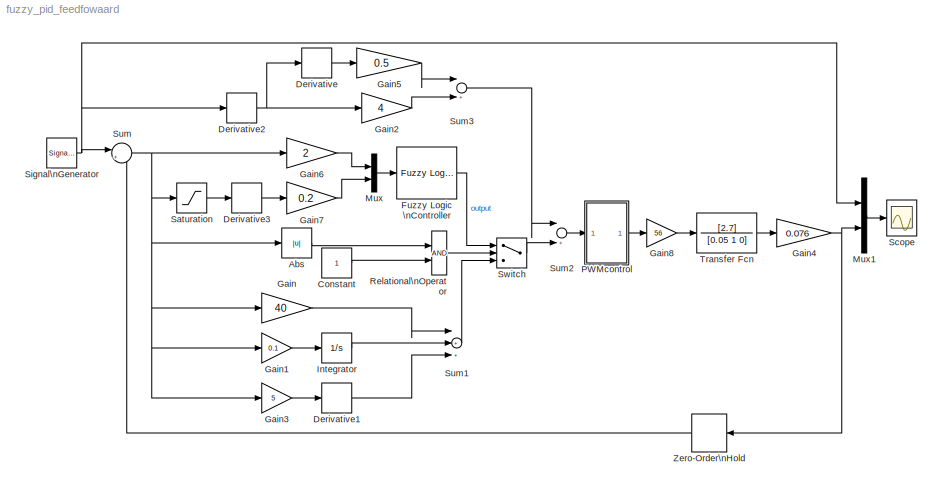
MODEL fuzzy_pid_feedfowaard
KIND model
BLOCK [Abs] Abs
  SampleTime = -1
  SaturateOnIntegerOverflow = on
  ZeroCross = on
BLOCK [Constant] Constant
  ConRadixGroup = Use specified scaling
  FramePeriod = inf
  OutDataType = sfix(16)
  OutDataTypeMode = Inherit from 'Constant value'
  OutScaling = 2^0
  SampleTime = inf
  SamplingMode = Sample based
  Value = 1
  VectorParams1D = on
BLOCK [Derivative] Derivative
BLOCK [Derivative] Derivative1
BLOCK [Derivative] Derivative2
BLOCK [Derivative] Derivative3
BLOCK [Reference] Fuzzy Logic \nController  REF=fuzblock/Fuzzy Logic \nController  (lib defined in mdl_858b3b3e7478)
  FunctionWithSeparateData = off
  Ports = [1, 1]
  RTWMemSecDataConstants = Inherit from model
  RTWMemSecDataInternal = Inherit from model
  RTWMemSecDataParameters = Inherit from model
  RTWMemSecFuncExecute = Inherit from model
  RTWMemSecFuncInitTerm = Inherit from model
  ShowPortLabels = on
  SourceBlock = fuzblock/Fuzzy Logic \nController
  SourceType = FIS
  SystemSampleTime = -1
  fis = demo1
BLOCK [Gain] Gain
  Gain = 40
BLOCK [Gain] Gain1
  Gain = 0.1
BLOCK [Gain] Gain2
  Gain = 4
BLOCK [Gain] Gain3
  Gain = 5
BLOCK [Gain] Gain4
  Gain = 0.076
BLOCK [Gain] Gain5
  Gain = 0.5
BLOCK [Gain] Gain6
  Gain = 2
BLOCK [Gain] Gain7
  Gain = 0.2
BLOCK [Gain] Gain8
  Gain = 56
BLOCK [Integrator] Integrator
  IgnoreLimit = off
  Ports = [1, 1]
BLOCK [Mux] Mux
  DisplayOption = bar
  Inputs = 2
  Ports = [2, 1]
BLOCK [Mux] Mux1
  DisplayOption = bar
  Inputs = 2
  Ports = [2, 1]
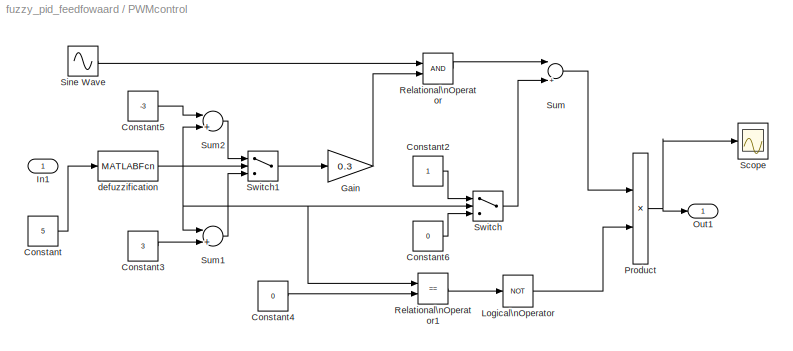
BLOCK [SubSystem] PWMcontrol
  FunctionWithSeparateData = off
  MaskHideContents = off
  MinAlgLoopOccurrences = off
  Ports = [1, 1]
  RTWSystemCode = Auto
BLOCK [Constant] PWMcontrol/Constant
  ConRadixGroup = Use specified scaling
  FramePeriod = inf
  OutDataType = sfix(16)
  OutDataTypeMode = Inherit from 'Constant value'
  OutScaling = 2^0
  SampleTime = inf
  SamplingMode = Sample based
  Value = 5
  VectorParams1D = on
BLOCK [Constant] PWMcontrol/Constant2
  ConRadixGroup = Use specified scaling
  FramePeriod = inf
  OutDataType = sfix(16)
  OutDataTypeMode = Inherit from 'Constant value'
  OutScaling = 2^0
  SampleTime = inf
  SamplingMode = Sample based
  Value = 1
  VectorParams1D = on
BLOCK [Constant] PWMcontrol/Constant3
  ConRadixGroup = Use specified scaling
  FramePeriod = inf
  OutDataType = sfix(16)
  OutDataTypeMode = Inherit from 'Constant value'
  OutScaling = 2^0
  SampleTime = inf
  SamplingMode = Sample based
  Value = 3
  VectorParams1D = on
BLOCK [Constant] PWMcontrol/Constant4
  ConRadixGroup = Use specified scaling
  FramePeriod = inf
  OutDataType = sfix(16)
  OutDataTypeMode = Inherit from 'Constant value'
  OutScaling = 2^0
  SampleTime = inf
  SamplingMode = Sample based
  Value = 0
  VectorParams1D = on
BLOCK [Constant] PWMcontrol/Constant5
  ConRadixGroup = Use specified scaling
  FramePeriod = inf
  OutDataType = sfix(16)
  OutDataTypeMode = Inherit from 'Constant value'
  OutScaling = 2^0
  SampleTime = inf
  SamplingMode = Sample based
  Value = -3
  VectorParams1D = on
BLOCK [Constant] PWMcontrol/Constant6
  ConRadixGroup = Use specified scaling
  FramePeriod = inf
  OutDataType = sfix(16)
  OutDataTypeMode = Inherit from 'Constant value'
  OutScaling = 2^0
  SampleTime = inf
  SamplingMode = Sample based
  Value = 0
  VectorParams1D = on
BLOCK [Gain] PWMcontrol/Gain
  Gain = 0.3
BLOCK [Inport] PWMcontrol/In1
  IconDisplay = Port number
BLOCK [Logic] PWMcontrol/Logical\nOperator
  Inputs = 1
  Operator = NOT
  Ports = [1, 1]
BLOCK [Outport] PWMcontrol/Out1
  BusOutputAsStruct = off
  IconDisplay = Port number
BLOCK [Product] PWMcontrol/Product
  Ports = [2, 1]
BLOCK [RelationalOperator] PWMcontrol/Relational\nOperator
BLOCK [RelationalOperator] PWMcontrol/Relational\nOperator1
  Operator = ==
BLOCK [Scope] PWMcontrol/Scope
  DataFormat = StructureWithTime
  Floating = off
  MaxDataPoints = 10000
  NumInputPorts = 1
  Ports = [1]
  SampleTime = 0
  SaveName = ScopeData1
  TimeRange = 5
  YMax = 7
  YMin = 0
  ZoomMode = xonly
BLOCK [Sin] PWMcontrol/Sine Wave
  Frequency = 10000
  Ports = [0, 1]
  SampleTime = 0
  SineType = Time based
BLOCK [Sum] PWMcontrol/Sum
  Inputs = |+-
  Ports = [2, 1]
BLOCK [Sum] PWMcontrol/Sum1
  Inputs = |++
  Ports = [2, 1]
BLOCK [Sum] PWMcontrol/Sum2
  Inputs = |++
  Ports = [2, 1]
BLOCK [Switch] PWMcontrol/Switch
BLOCK [Switch] PWMcontrol/Switch1
BLOCK [MATLABFcn] PWMcontrol/defuzzification
  MATLABFcn = pwm_control
  OutputDimensions = 1
BLOCK [RelationalOperator] Relational\nOperator
BLOCK [Saturate] Saturation
  LowerLimit = -10
  UpperLimit = 10
BLOCK [Scope] Scope
  DataFormat = StructureWithTime
  Floating = off
  MaxDataPoints = 10000
  NumInputPorts = 1
  Ports = [1]
  SampleTime = 0
  TimeRange = 100
  YMax = 12
  YMin = -12
  ZoomMode = xonly
BLOCK [SignalGenerator] Signal\nGenerator
  Amplitude = 10
  Frequency = 10
  Ports = [0, 1]
  Units = rad/sec
BLOCK [Sum] Sum
  IconShape = round
  Inputs = |+-
  Ports = [2, 1]
BLOCK [Sum] Sum1
  Inputs = |+++
  Ports = [3, 1]
BLOCK [Sum] Sum2
  Inputs = |++
  Ports = [2, 1]
BLOCK [Sum] Sum3
  Inputs = |++
  Ports = [2, 1]
BLOCK [Switch] Switch
  Threshold = 1
BLOCK [TransferFcn] Transfer Fcn
  Denominator = [0.05 1 0]
  Numerator = [2.7]
BLOCK [ZeroOrderHold] Zero-Order\nHold
  SampleTime = 0.0000001
LINE Abs:1 -> Relational\nOperator:1
LINE Constant:1 -> Relational\nOperator:2
LINE Derivative1:1 -> Sum1:3
NET Derivative2:1 -> Derivative:1, Gain2:1
LINE Derivative3:1 -> Gain7:1
LINE Derivative:1 -> Gain5:1
LINE Fuzzy Logic \nController:1 -> Switch:1
LINE Gain1:1 -> Integrator:1
LINE Gain2:1 -> Sum3:2
LINE Gain3:1 -> Derivative1:1
NET Gain4:1 -> Mux1:2, Zero-Order\nHold:1
LINE Gain5:1 -> Sum3:1
LINE Gain6:1 -> Mux:1
LINE Gain7:1 -> Mux:2
LINE Gain8:1 -> Transfer Fcn:1
LINE Gain:1 -> Sum1:1
LINE Integrator:1 -> Sum1:2
LINE Mux1:1 -> Scope:1
LINE Mux:1 -> Fuzzy Logic \nController:1
LINE PWMcontrol/Constant2:1 -> PWMcontrol/Switch:1
LINE PWMcontrol/Constant3:1 -> PWMcontrol/Sum1:2
LINE PWMcontrol/Constant4:1 -> PWMcontrol/Relational\nOperator1:2
LINE PWMcontrol/Constant5:1 -> PWMcontrol/Sum2:1
LINE PWMcontrol/Constant6:1 -> PWMcontrol/Switch:3
LINE PWMcontrol/Constant:1 -> PWMcontrol/defuzzification:1
LINE PWMcontrol/Gain:1 -> PWMcontrol/Relational\nOperator:2
LINE PWMcontrol/Logical\nOperator:1 -> PWMcontrol/Product:2
NET PWMcontrol/Product:1 -> PWMcontrol/Out1:1, PWMcontrol/Scope:1
LINE PWMcontrol/Relational\nOperator1:1 -> PWMcontrol/Logical\nOperator:1
LINE PWMcontrol/Relational\nOperator:1 -> PWMcontrol/Sum:1
LINE PWMcontrol/Sine Wave:1 -> PWMcontrol/Relational\nOperator:1
LINE PWMcontrol/Sum1:1 -> PWMcontrol/Switch1:3
LINE PWMcontrol/Sum2:1 -> PWMcontrol/Switch1:1
LINE PWMcontrol/Sum:1 -> PWMcontrol/Product:1
LINE PWMcontrol/Switch1:1 -> PWMcontrol/Gain:1
LINE PWMcontrol/Switch:1 -> PWMcontrol/Sum:2
NET PWMcontrol/defuzzification:1 -> PWMcontrol/Relational\nOperator1:1, PWMcontrol/Sum1:1, PWMcontrol/Sum2:2, PWMcontrol/Switch1:2, PWMcontrol/Switch:2
LINE PWMcontrol:1 -> Gain8:1
LINE Relational\nOperator:1 -> Switch:2
LINE Saturation:1 -> Derivative3:1
NET Signal\nGenerator:1 -> Derivative2:1, Mux1:1, Sum:1
LINE Sum1:1 -> Switch:3
LINE Sum2:1 -> PWMcontrol:1
LINE Sum3:1 -> Sum2:1
NET Sum:1 -> Abs:1, Gain1:1, Gain3:1, Gain6:1, Gain:1, Saturation:1
LINE Switch:1 -> Sum2:2
LINE Transfer Fcn:1 -> Gain4:1
LINE Zero-Order\nHold:1 -> Sum:2
note: NET lines group one-source signal fan-out (src -> all destinations, sorted); 1:1 wires keep LINE
